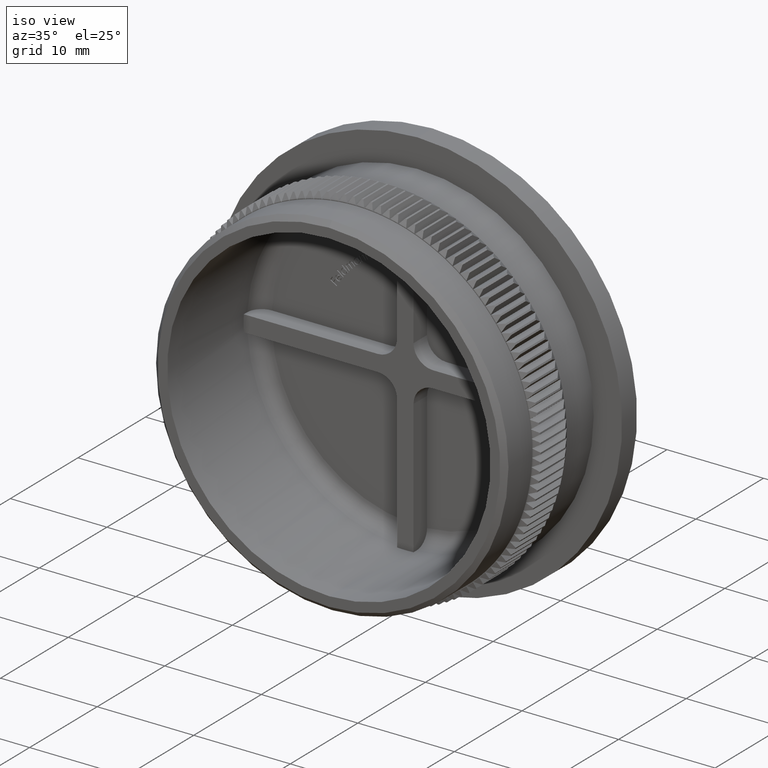
[diagram: clean part render]
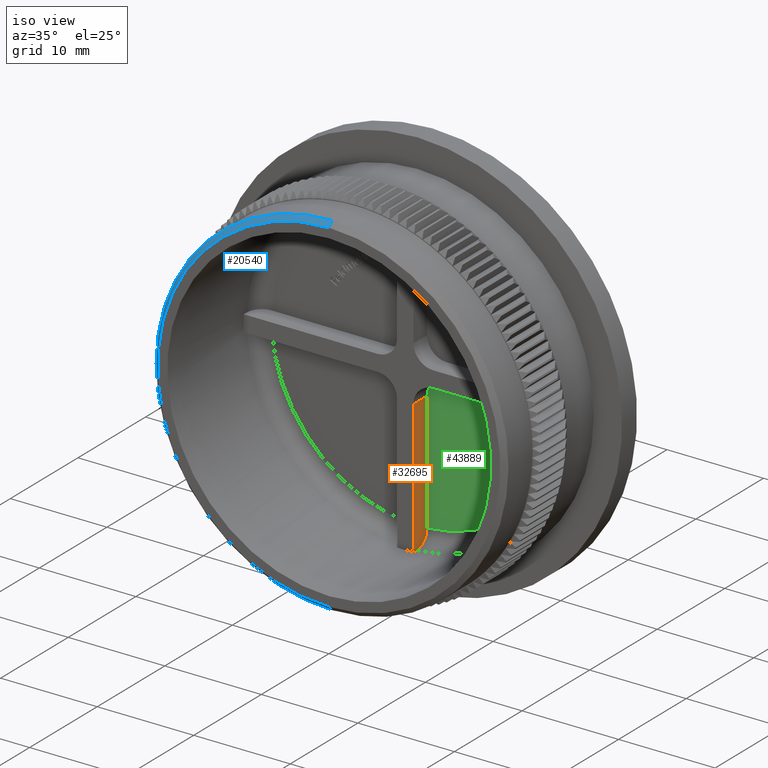
[diagram: same view with three faces highlighted in distinct colors, each labeled with its STEP entity id]
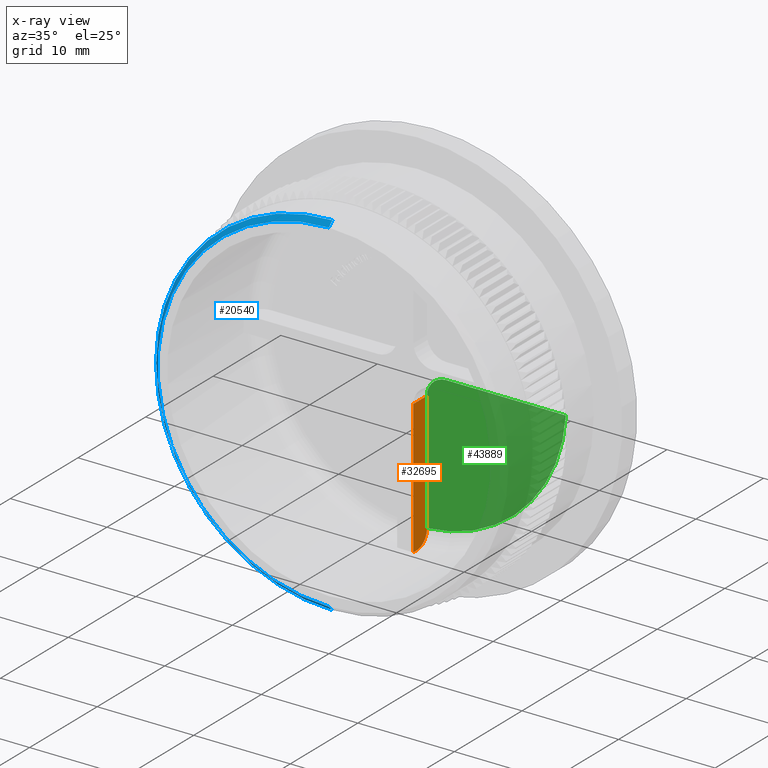
[diagram: x-ray of the same camera — body ghosted, the three highlighted faces saturated]
A machine part, iso view with three faces highlighted in distinct colors.
The next image is the same camera in x-ray (body ghosted, the three faces saturated) — at least one of them is partly hidden behind the body in this view.
Their STEP definitions:

[orange] entity #32695 — the highlighted planar face has unit normal (-1, -0, 0).
#530 = DIRECTION ( 'NONE',  ( 9.149720241387319000E-016, 0.0000000000000000000, 1.000000000000000000 ) ) ;
#1803 = ORIENTED_EDGE ( 'NONE', *, *, #33035, .T. ) ;
#3913 = VERTEX_POINT ( 'NONE', #38398 ) ;
#4181 = CARTESIAN_POINT ( 'NONE',  ( 0.8500000000000009800, 12.93046289886763300, -16.21853098385473800 ) ) ;
#4520 = VERTEX_POINT ( 'NONE', #8394 ) ;
#4980 = EDGE_CURVE ( 'NONE', #5746, #3913, #34745, .T. ) ;
#5746 = VERTEX_POINT ( 'NONE', #10619 ) ;
#7129 = LINE ( 'NONE', #28014, #33247 ) ;
#7874 = CARTESIAN_POINT ( 'NONE',  ( 0.8500000000000012000, 13.26137488691155400, -15.61840398903147300 ) ) ;
#8394 = CARTESIAN_POINT ( 'NONE',  ( 0.8500000000000126300, 13.30000000000000400, -2.849999999999998300 ) ) ;
#8418 = EDGE_CURVE ( 'NONE', #17096, #4520, #13307, .T. ) ;
#8486 = CARTESIAN_POINT ( 'NONE',  ( 0.8500000000000068600, 11.30000000000000400, -16.72841893306118900 ) ) ;
#8519 = EDGE_CURVE ( 'NONE', #3913, #17096, #41367, .T. ) ;
#8983 = DIRECTION ( 'NONE',  ( 1.156482317317871700E-015, -1.000000000000000000, -0.0000000000000000000 ) ) ;
#9078 = DIRECTION ( 'NONE',  ( 1.156482317317871700E-015, -1.000000000000000000, 0.0000000000000000000 ) ) ;
#9248 = EDGE_LOOP ( 'NONE', ( #20258, #1803, #16591, #41378, #35531 ) ) ;
#10619 = CARTESIAN_POINT ( 'NONE',  ( 0.8500000000000068600, 11.30000000000000400, -16.72841893306118900 ) ) ;
#11297 = CARTESIAN_POINT ( 'NONE',  ( 0.8500000000000016400, 11.80000000000000200, -16.72841893306118900 ) ) ;
#13307 = LINE ( 'NONE', #36678, #20215 ) ;
#15069 = VECTOR ( 'NONE', #18788, 1000.000000000000000 ) ;
#15835 = CARTESIAN_POINT ( 'NONE',  ( 0.8500000000000022000, 11.30000000000000400, -16.72841893306118900 ) ) ;
#16070 = VECTOR ( 'NONE', #8983, 1000.000000000000000 ) ;
#16591 = ORIENTED_EDGE ( 'NONE', *, *, #29512, .F. ) ;
#17096 = VERTEX_POINT ( 'NONE', #17429 ) ;
#17429 = CARTESIAN_POINT ( 'NONE',  ( 0.8500000000000013100, 13.30000000000000200, -15.22629304853942700 ) ) ;
#17881 = CARTESIAN_POINT ( 'NONE',  ( 0.8500000000000009800, 12.71647589554078000, -16.41953284642856700 ) ) ;
#18458 = CARTESIAN_POINT ( 'NONE',  ( 0.8500000000000013100, 13.30000000000000200, -15.22629304853942700 ) ) ;
#18788 = DIRECTION ( 'NONE',  ( -1.156482317317871700E-015, 1.000000000000000000, -0.0000000000000000000 ) ) ;
#18955 = CARTESIAN_POINT ( 'NONE',  ( 0.8500000000000149700, 11.30000000000000400, -2.849999999999998300 ) ) ;
#19526 = DIRECTION ( 'NONE',  ( -1.000000000000000000, -1.156482317317871700E-015, 9.149720241387319000E-016 ) ) ;
#20215 = VECTOR ( 'NONE', #40092, 1000.000000000000000 ) ;
#20258 = ORIENTED_EDGE ( 'NONE', *, *, #8418, .T. ) ;
#21392 = CARTESIAN_POINT ( 'NONE',  ( 0.8500000000000009800, 12.99366965495549000, -16.14125719281875200 ) ) ;
#22659 = CARTESIAN_POINT ( 'NONE',  ( 0.8500000000000149700, 11.30000000000000400, -2.849999999999998300 ) ) ;
#22902 = PLANE ( 'NONE',  #23884 ) ;
#22921 = FACE_OUTER_BOUND ( 'NONE', #9248, .T. ) ;
#23425 = LINE ( 'NONE', #22659, #16070 ) ;
#23884 = AXIS2_PLACEMENT_3D ( 'NONE', #15835, #19526, #9078 ) ;
#26178 = VERTEX_POINT ( 'NONE', #18955 ) ;
#28014 = CARTESIAN_POINT ( 'NONE',  ( 0.8500000000000022000, 11.30000000000000400, -16.72841893306118900 ) ) ;
#28241 = CARTESIAN_POINT ( 'NONE',  ( 0.8500000000000009800, 13.10212933882979900, -15.97841456426264300 ) ) ;
#29512 = EDGE_CURVE ( 'NONE', #5746, #26178, #7129, .T. ) ;
#32695 = ADVANCED_FACE ( 'NONE', ( #22921 ), #22902, .F. ) ;
#33035 = EDGE_CURVE ( 'NONE', #4520, #26178, #23425, .T. ) ;
#33247 = VECTOR ( 'NONE', #530, 1000.000000000000000 ) ;
#34745 = LINE ( 'NONE', #8486, #15069 ) ;
#35143 = CARTESIAN_POINT ( 'NONE',  ( 0.8500000000000009800, 13.30000000000000200, -15.42354105409643600 ) ) ;
#35288 = CARTESIAN_POINT ( 'NONE',  ( 0.8500000000000007500, 12.79189738416936400, -16.35742119507988000 ) ) ;
#35531 = ORIENTED_EDGE ( 'NONE', *, *, #8519, .T. ) ;
#36678 = CARTESIAN_POINT ( 'NONE',  ( 0.8499999999999999800, 13.30000000000000400, -16.72841893306118900 ) ) ;
#38272 = CARTESIAN_POINT ( 'NONE',  ( 0.8500000000000012000, 12.55328662097790400, -16.52900700919811100 ) ) ;
#38398 = CARTESIAN_POINT ( 'NONE',  ( 0.8500000000000016400, 11.80000000000000200, -16.72841893306118900 ) ) ;
#38572 = CARTESIAN_POINT ( 'NONE',  ( 0.8500000000000010900, 12.46545718688517100, -16.57607835606976800 ) ) ;
#38865 = CARTESIAN_POINT ( 'NONE',  ( 0.8500000000000012000, 12.19465580630403600, -16.68866185285010700 ) ) ;
#40092 = DIRECTION ( 'NONE',  ( 9.149720241387319000E-016, 0.0000000000000000000, 1.000000000000000000 ) ) ;
#41367 = B_SPLINE_CURVE_WITH_KNOTS ( 'NONE', 3,
 ( #11297, #41995, #38865, #38572, #38272, #17881, #35288, #4181, #21392, #28241, #41682, #7874, #35143, #18458 ),
 .UNSPECIFIED., .F., .F.,
 ( 4, 2, 2, 2, 2, 2, 4 ),
 ( 0.009102683150749697700, 0.009688881186085008400, 0.009981980203752660200, 0.01027507922142031200, 0.01056817823908796200, 0.01086127725675561400, 0.01144747529209090200 ),
 .UNSPECIFIED. ) ;
#41378 = ORIENTED_EDGE ( 'NONE', *, *, #4980, .T. ) ;
#41682 = CARTESIAN_POINT ( 'NONE',  ( 0.8500000000000009800, 13.14821548426730600, -15.89214642390944800 ) ) ;
#41995 = CARTESIAN_POINT ( 'NONE',  ( 0.8500000000000015300, 11.99784865486887300, -16.72841893306118200 ) ) ;

[blue] entity #20540 — the highlighted conical surface has half-angle 45 deg.
#126 = CARTESIAN_POINT ( 'NONE',  ( 0.0000000000000000000, 0.5000000000000004400, -18.25000000000000400 ) ) ;
#289 = CIRCLE ( 'NONE', #43073, 18.25000000000000400 ) ;
#931 = DIRECTION ( 'NONE',  ( -0.0000000000000000000, -1.000000000000000000, -0.0000000000000000000 ) ) ;
#1876 = CONICAL_SURFACE ( 'NONE', #16531, 17.75000000000000400, 0.7853981633974482800 ) ;
#1881 = VECTOR ( 'NONE', #10700, 1000.000000000000100 ) ;
#2139 = CARTESIAN_POINT ( 'NONE',  ( 2.234980408443920000E-015, 0.5000000000000004400, 18.25000000000000400 ) ) ;
#4152 = CARTESIAN_POINT ( 'NONE',  ( 0.0000000000000000000, 0.0000000000000000000, 17.75000000000000400 ) ) ;
#5726 = CIRCLE ( 'NONE', #10141, 17.75000000000000400 ) ;
#8841 = VERTEX_POINT ( 'NONE', #2139 ) ;
#10138 = DIRECTION ( 'NONE',  ( 0.0000000000000000000, 0.0000000000000000000, -1.000000000000000000 ) ) ;
#10141 = AXIS2_PLACEMENT_3D ( 'NONE', #11614, #931, #21264 ) ;
#10700 = DIRECTION ( 'NONE',  ( 8.659560562354932900E-017, 0.7071067811865474600, -0.7071067811865474600 ) ) ;
#11614 = CARTESIAN_POINT ( 'NONE',  ( 0.0000000000000000000, 0.0000000000000000000, 0.0000000000000000000 ) ) ;
#16193 = EDGE_LOOP ( 'NONE', ( #41556, #43901, #34199, #36690 ) ) ;
#16531 = AXIS2_PLACEMENT_3D ( 'NONE', #23522, #30112, #40696 ) ;
#17036 = VERTEX_POINT ( 'NONE', #4152 ) ;
#17176 = DIRECTION ( 'NONE',  ( 0.0000000000000000000, 1.000000000000000000, 0.0000000000000000000 ) ) ;
#18867 = VERTEX_POINT ( 'NONE', #30772 ) ;
#20520 = EDGE_CURVE ( 'NONE', #26234, #8841, #289, .T. ) ;
#20540 = ADVANCED_FACE ( 'NONE', ( #38635 ), #1876, .T. ) ;
#21264 = DIRECTION ( 'NONE',  ( 0.0000000000000000000, 0.0000000000000000000, -1.000000000000000000 ) ) ;
#23522 = CARTESIAN_POINT ( 'NONE',  ( 0.0000000000000000000, 0.0000000000000000000, 0.0000000000000000000 ) ) ;
#23922 = CARTESIAN_POINT ( 'NONE',  ( 2.173748068486552000E-015, 0.0000000000000000000, -17.75000000000000400 ) ) ;
#26234 = VERTEX_POINT ( 'NONE', #126 ) ;
#27543 = CARTESIAN_POINT ( 'NONE',  ( 0.0000000000000000000, 0.5000000000000004400, 0.0000000000000000000 ) ) ;
#28995 = LINE ( 'NONE', #23922, #1881 ) ;
#30112 = DIRECTION ( 'NONE',  ( 0.0000000000000000000, 1.000000000000000000, 0.0000000000000000000 ) ) ;
#30772 = CARTESIAN_POINT ( 'NONE',  ( 2.204364238465236200E-015, 0.0000000000000000000, -17.75000000000000400 ) ) ;
#31419 = VECTOR ( 'NONE', #35973, 1000.000000000000100 ) ;
#32964 = EDGE_CURVE ( 'NONE', #17036, #8841, #43701, .T. ) ;
#34199 = ORIENTED_EDGE ( 'NONE', *, *, #32964, .T. ) ;
#35973 = DIRECTION ( 'NONE',  ( 0.0000000000000000000, 0.7071067811865474600, 0.7071067811865474600 ) ) ;
#36690 = ORIENTED_EDGE ( 'NONE', *, *, #20520, .F. ) ;
#37798 = EDGE_CURVE ( 'NONE', #18867, #26234, #28995, .T. ) ;
#38635 = FACE_OUTER_BOUND ( 'NONE', #16193, .T. ) ;
#38936 = CARTESIAN_POINT ( 'NONE',  ( 0.0000000000000000000, 0.0000000000000000000, 17.75000000000000400 ) ) ;
#40346 = EDGE_CURVE ( 'NONE', #17036, #18867, #5726, .T. ) ;
#40696 = DIRECTION ( 'NONE',  ( 0.0000000000000000000, 0.0000000000000000000, 1.000000000000000000 ) ) ;
#41556 = ORIENTED_EDGE ( 'NONE', *, *, #37798, .F. ) ;
#43073 = AXIS2_PLACEMENT_3D ( 'NONE', #27543, #17176, #10138 ) ;
#43701 = LINE ( 'NONE', #38936, #31419 ) ;
#43901 = ORIENTED_EDGE ( 'NONE', *, *, #40346, .F. ) ;

[green] entity #43889 — the highlighted planar face has unit normal (0, -1, -0).
#3448 = DIRECTION ( 'NONE',  ( 0.0000000000000000000, 0.0000000000000000000, -1.000000000000000000 ) ) ;
#4520 = VERTEX_POINT ( 'NONE', #8394 ) ;
#5126 = DIRECTION ( 'NONE',  ( 0.0000000000000000000, 0.0000000000000000000, -1.000000000000000000 ) ) ;
#5408 = ORIENTED_EDGE ( 'NONE', *, *, #32497, .F. ) ;
#7165 = CIRCLE ( 'NONE', #9246, 15.25000000000000200 ) ;
#8394 = CARTESIAN_POINT ( 'NONE',  ( 0.8500000000000126300, 13.30000000000000400, -2.849999999999998300 ) ) ;
#8418 = EDGE_CURVE ( 'NONE', #17096, #4520, #13307, .T. ) ;
#8936 = AXIS2_PLACEMENT_3D ( 'NONE', #30723, #34021, #26711 ) ;
#9246 = AXIS2_PLACEMENT_3D ( 'NONE', #20236, #9822, #3448 ) ;
#9822 = DIRECTION ( 'NONE',  ( -0.0000000000000000000, -1.000000000000000000, -0.0000000000000000000 ) ) ;
#11251 = VERTEX_POINT ( 'NONE', #34413 ) ;
#13307 = LINE ( 'NONE', #36678, #20215 ) ;
#14452 = VECTOR ( 'NONE', #21272, 1000.000000000000000 ) ;
#16225 = VERTEX_POINT ( 'NONE', #32812 ) ;
#16336 = CIRCLE ( 'NONE', #8936, 2.000000000000000000 ) ;
#17096 = VERTEX_POINT ( 'NONE', #17429 ) ;
#17429 = CARTESIAN_POINT ( 'NONE',  ( 0.8500000000000013100, 13.30000000000000200, -15.22629304853942700 ) ) ;
#18365 = EDGE_CURVE ( 'NONE', #16225, #4520, #16336, .T. ) ;
#18672 = PLANE ( 'NONE',  #21339 ) ;
#19240 = LINE ( 'NONE', #31561, #14452 ) ;
#20215 = VECTOR ( 'NONE', #40092, 1000.000000000000000 ) ;
#20236 = CARTESIAN_POINT ( 'NONE',  ( 0.0000000000000000000, 13.30000000000000200, 0.0000000000000000000 ) ) ;
#21272 = DIRECTION ( 'NONE',  ( 1.000000000000000000, 1.092503909419381800E-015, 6.828149433871136500E-018 ) ) ;
#21339 = AXIS2_PLACEMENT_3D ( 'NONE', #42503, #22059, #5126 ) ;
#22059 = DIRECTION ( 'NONE',  ( 0.0000000000000000000, -1.000000000000000000, -0.0000000000000000000 ) ) ;
#24134 = EDGE_LOOP ( 'NONE', ( #5408, #26960, #43865, #39468 ) ) ;
#26711 = DIRECTION ( 'NONE',  ( 0.0000000000000000000, 0.0000000000000000000, -1.000000000000000000 ) ) ;
#26960 = ORIENTED_EDGE ( 'NONE', *, *, #18365, .T. ) ;
#30723 = CARTESIAN_POINT ( 'NONE',  ( 2.850000000000012500, 13.30000000000000200, -2.850000000000000100 ) ) ;
#31561 = CARTESIAN_POINT ( 'NONE',  ( 0.8500000000000145200, 13.30000000000000400, -0.8500000000000000900 ) ) ;
#32497 = EDGE_CURVE ( 'NONE', #16225, #11251, #19240, .T. ) ;
#32812 = CARTESIAN_POINT ( 'NONE',  ( 2.850000000000012500, 13.30000000000000600, -0.8500000000000000900 ) ) ;
#34021 = DIRECTION ( 'NONE',  ( -0.0000000000000000000, -1.000000000000000000, -0.0000000000000000000 ) ) ;
#34413 = CARTESIAN_POINT ( 'NONE',  ( 15.22629304853942700, 13.30000000000000200, -0.8500000000000000900 ) ) ;
#36678 = CARTESIAN_POINT ( 'NONE',  ( 0.8499999999999999800, 13.30000000000000400, -16.72841893306118900 ) ) ;
#37722 = EDGE_CURVE ( 'NONE', #17096, #11251, #7165, .T. ) ;
#39468 = ORIENTED_EDGE ( 'NONE', *, *, #37722, .T. ) ;
#40092 = DIRECTION ( 'NONE',  ( 9.149720241387319000E-016, 0.0000000000000000000, 1.000000000000000000 ) ) ;
#42503 = CARTESIAN_POINT ( 'NONE',  ( 16.75000000000000000, 13.30000000000000200, 0.0000000000000000000 ) ) ;
#43865 = ORIENTED_EDGE ( 'NONE', *, *, #8418, .F. ) ;
#43889 = ADVANCED_FACE ( 'NONE', ( #43963 ), #18672, .T. ) ;
#43963 = FACE_OUTER_BOUND ( 'NONE', #24134, .T. ) ;